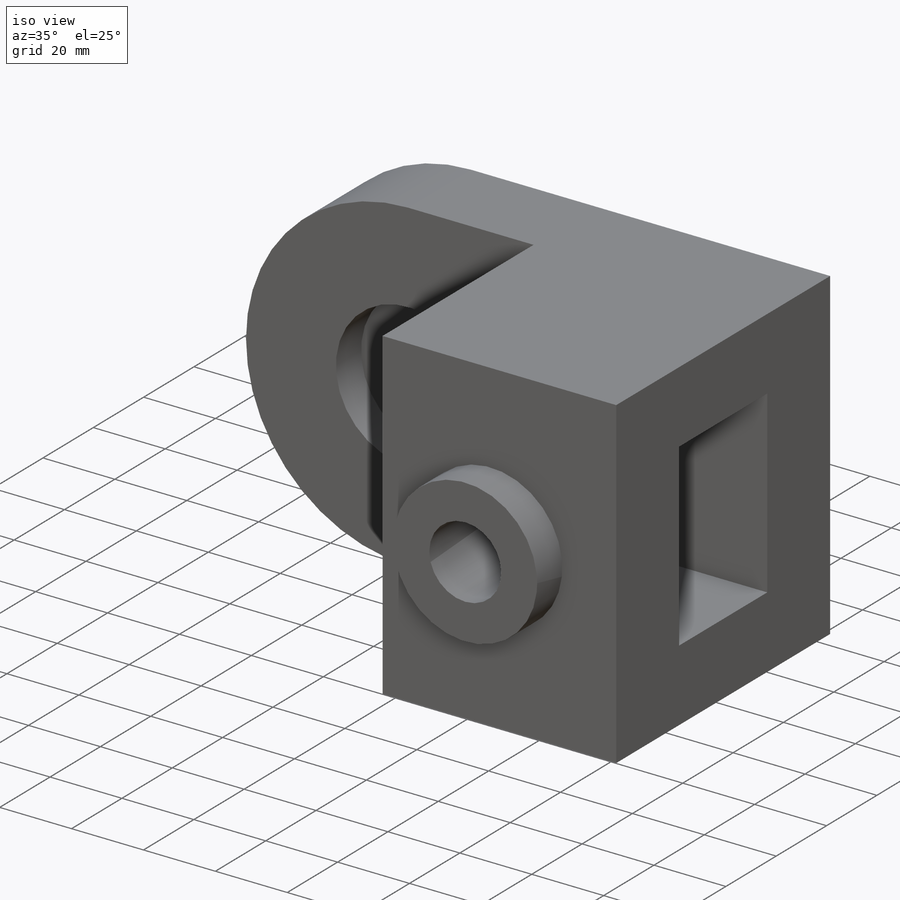
[diagram: iso view]
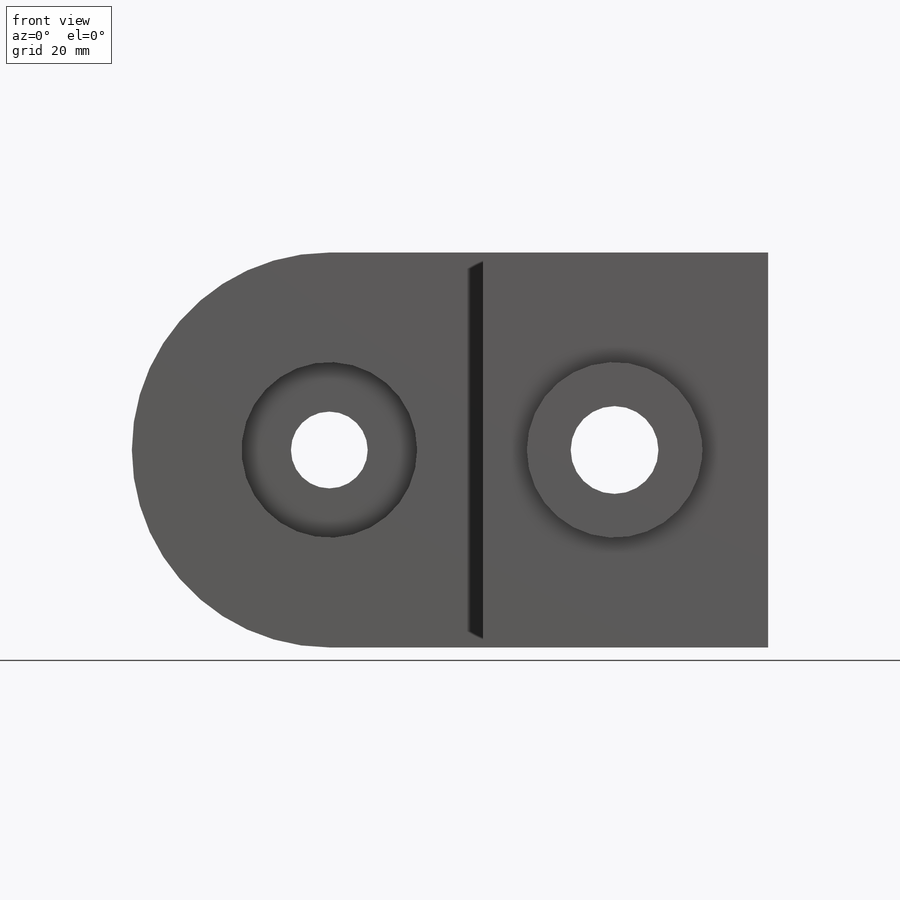
[diagram: front view]
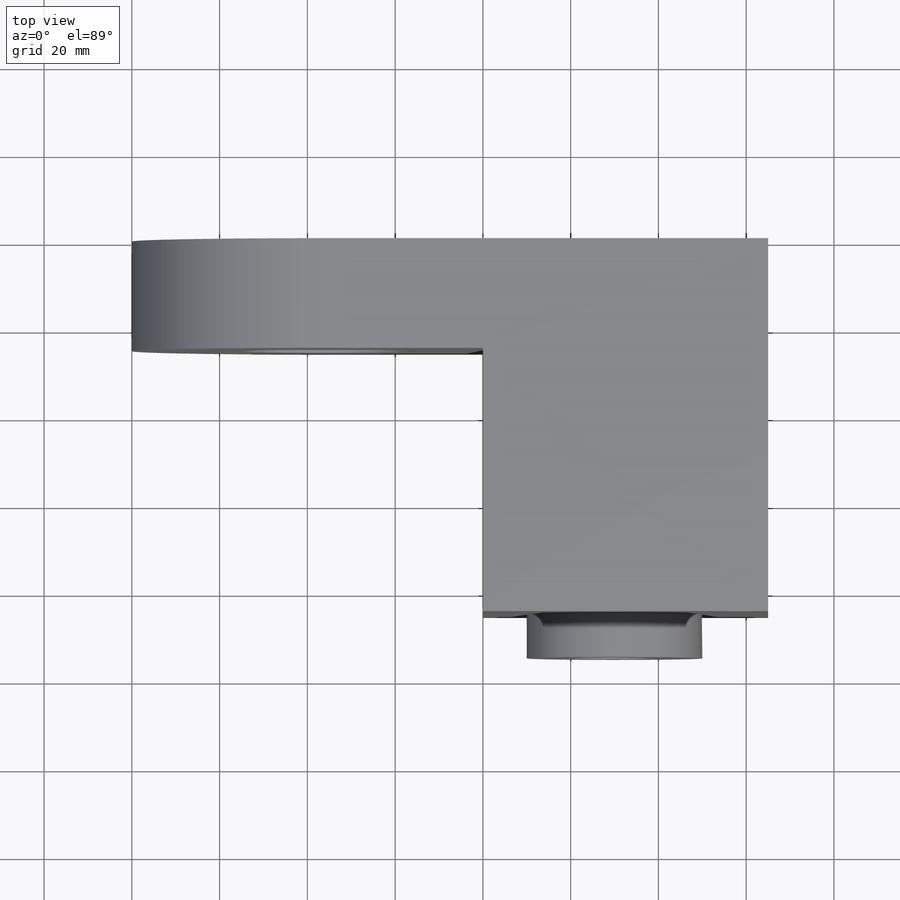
[diagram: top view]
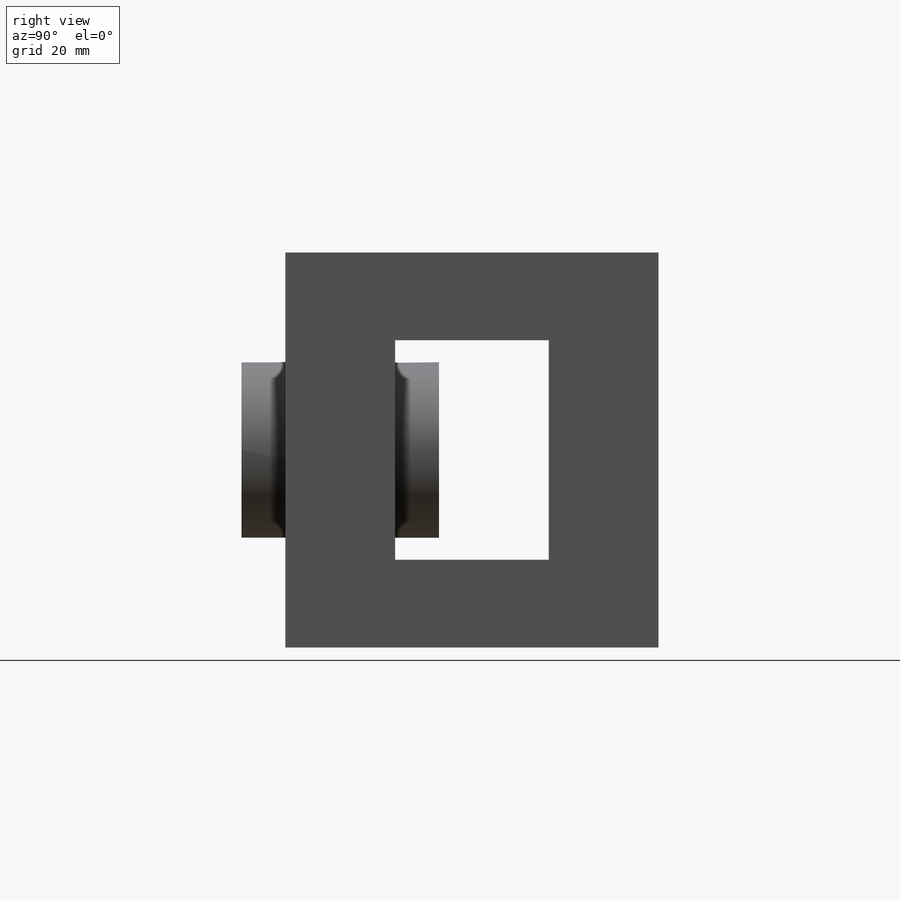
[diagram: right view]
SOLIDWORKS PART (.sldprt)
format: sldprt  version: not decoded by parser v0  size: 363,008 bytes
history: native  units: mm
features: sketch x18, cut_extrude x9, extrude x3, thread x3, hole x2, material x1 (+13 scaffold rows collapsed)
feature tree (49):
  scaffold x13  (default folders/planes/origin — collapsed)
  material  "Material <not specified>"
  sketch  "Sketch1"  dims[D1=90.0mm D2=145.0mm]
  extrude  "Boss-Extrude1"  Depth=85mm
  sketch  "Sketch2"  dims[D2=45.0mm D1=45.0mm D3=45.0mm D4=45.0mm D5=90.0mm D6=90.0mm]
  cut_extrude  "Cut-Extrude1"  Depth=85mm
  sketch  "Sketch4"  dims[D1=35.0mm]
  cut_extrude  "Cut-Extrude3"  Depth=50mm
  sketch  "Sketch5"  dims[D1=35.0mm D2=45.0mm]
  hole  "M20 Tapped Hole1"  Diameter=17.5mm Depth=40mm
  sketch  "3DSketch1"
  sketch  "Sketch6"  dims[hole-wizard template sketch: 47 standard entries collapsed; hole parameters kept: c15.Tap Drill Depth=40.0mm c15.D3=~14.816244mm c15.Drill Angle=118.0deg]
  thread  "Hole Thread1"  Diameter=20mm  [1 undecoded]
  thread  "Hole Thread2"  Diameter=20mm  [1 undecoded]
  sketch  "Sketch8"  dims[D1=35.0mm D2=45.0mm]
  hole  "M20 Tapped Hole3"  Diameter=17.5mm Depth=60mm
  sketch  "3DSketch5"
  sketch  "Sketch11"  dims[hole-wizard template sketch: 47 standard entries collapsed; hole parameters kept: c15.Tap Drill Depth=60.0mm c15.D3=~14.816244mm c15.Drill Angle=118.0deg]
  thread  "Hole Thread4"  Diameter=60mm  [1 undecoded]
  sketch  "Sketch12"  dims[D1=20.0mm D2=40.0mm]
  cut_extrude  "Cut-Extrude4"  Depth=10mm
  sketch  "Sketch13"  dims[D1=17.5mm D2=20.0mm]
  cut_extrude  "Cut-Extrude5"  Depth=10mm
  sketch  "Sketch14"
  cut_extrude  "Cut-Extrude6"  Depth=10mm
  sketch  "Sketch15"  dims[D1=40.0mm D2=20.0mm]
  cut_extrude  "Cut-Extrude7"  Depth=10mm
  sketch  "Sketch16"  dims[D1=17.5mm D2=20.0mm]
  cut_extrude  "Cut-Extrude8"  Depth=10mm
  sketch  "Sketch17"  dims[D1=35.0mm D2=20.0mm D3=50.0mm]
  cut_extrude  "Cut-Extrude9"  Depth=97mm
  sketch  "Sketch18"  dims[D1=20.0mm D2=40.0mm]
  extrude  "Boss-Extrude2"  Depth=10mm
  sketch  "Sketch19"  dims[D1=17.5mm D2=40.0mm]
  extrude  "Boss-Extrude3"  Depth=10mm
  sketch  "Sketch20"  dims[D1=17.5mm D2=20.0mm]
  cut_extrude  "Cut-Extrude10"  Depth=120mm
decode coverage: 32 of 35 modeling features carry decoded parameters
note: ~ marks probable driven/reference dimensions
note: 3 parameter values undecoded
note: suppression state not decoded; provenance and decode notes live in map.json
